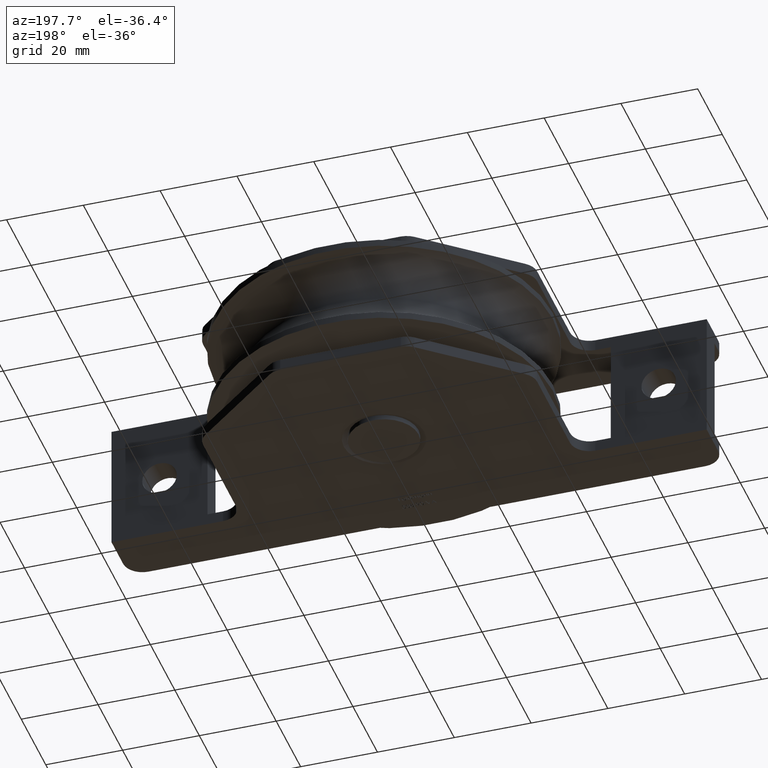
[diagram: clean part render]
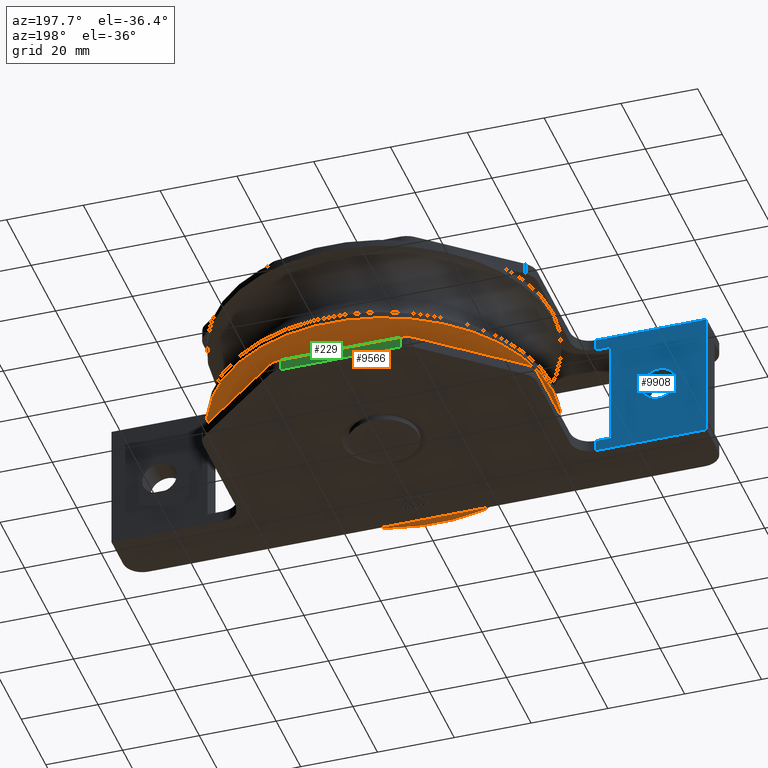
[diagram: same view with three faces highlighted in distinct colors, each labeled with its STEP entity id]
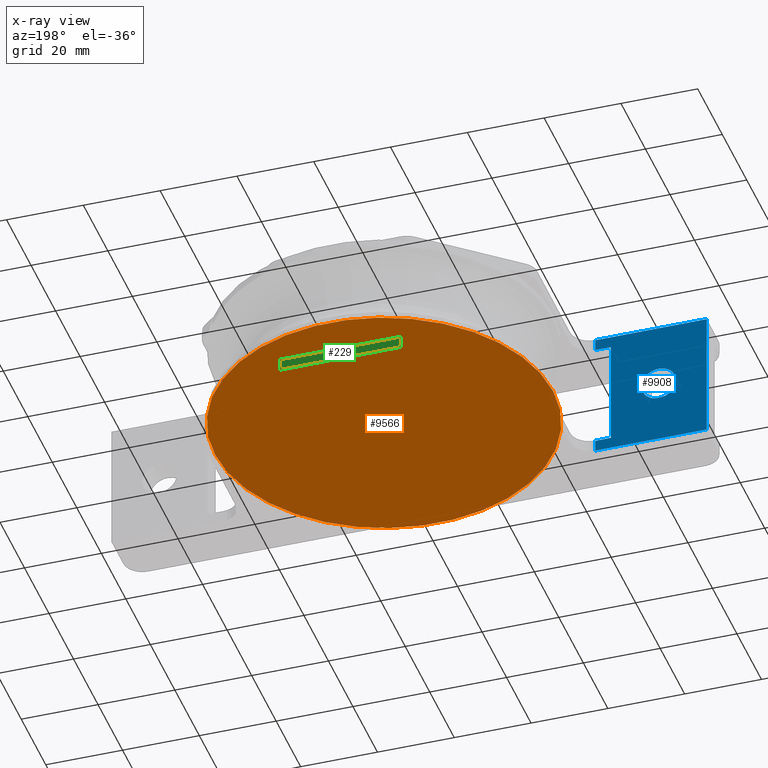
[diagram: x-ray of the same camera — body ghosted, the three highlighted faces saturated]
A machine part, auxiliary view with three faces highlighted in distinct colors.
The next image is the same camera in x-ray (body ghosted, the three faces saturated) — at least one of them is partly hidden behind the body in this view.
Their STEP definitions:

[orange] entity #9566 — the highlighted planar face has unit normal (0, 0, 1).
#1776 = DIRECTION ( 'NONE',  ( 1.000000000000000000, 0.0000000000000000000, -0.0000000000000000000 ) ) ;
#1826 = PLANE ( 'NONE',  #10534 ) ;
#2096 = CARTESIAN_POINT ( 'NONE',  ( 0.0000000000000000000, 0.0000000000000000000, -12.00000000000000000 ) ) ;
#3664 = FACE_OUTER_BOUND ( 'NONE', #9995, .T. ) ;
#3904 = ORIENTED_EDGE ( 'NONE', *, *, #11882, .F. ) ;
#4306 = DIRECTION ( 'NONE',  ( 1.000000000000000000, 0.0000000000000000000, 0.0000000000000000000 ) ) ;
#4448 = AXIS2_PLACEMENT_3D ( 'NONE', #2096, #14074, #4306 ) ;
#6651 = CIRCLE ( 'NONE', #4448, 44.00000000000000000 ) ;
#8445 = CARTESIAN_POINT ( 'NONE',  ( 0.0000000000000000000, 0.0000000000000000000, -12.00000000000000000 ) ) ;
#9566 = ADVANCED_FACE ( 'NONE', ( #3664 ), #1826, .F. ) ;
#9995 = EDGE_LOOP ( 'NONE', ( #3904 ) ) ;
#10246 = VERTEX_POINT ( 'NONE', #14340 ) ;
#10534 = AXIS2_PLACEMENT_3D ( 'NONE', #8445, #11937, #1776 ) ;
#11882 = EDGE_CURVE ( 'NONE', #10246, #10246, #6651, .T. ) ;
#11937 = DIRECTION ( 'NONE',  ( 0.0000000000000000000, 0.0000000000000000000, 1.000000000000000000 ) ) ;
#14074 = DIRECTION ( 'NONE',  ( 0.0000000000000000000, 0.0000000000000000000, 1.000000000000000000 ) ) ;
#14340 = CARTESIAN_POINT ( 'NONE',  ( 44.00000000000000000, 0.0000000000000000000, -12.00000000000000000 ) ) ;

[blue] entity #9908 — the highlighted planar face has unit normal (-0, -1, 0).
#4 = DIRECTION ( 'NONE',  ( -1.000000000000000000, 1.020425574104004200E-016, 0.0000000000000000000 ) ) ;
#382 = LINE ( 'NONE', #11800, #14119 ) ;
#400 = DIRECTION ( 'NONE',  ( 1.000000000000000000, -7.709882115452470300E-016, 0.0000000000000000000 ) ) ;
#723 = DIRECTION ( 'NONE',  ( 0.0000000000000000000, 0.0000000000000000000, -1.000000000000000000 ) ) ;
#924 = FACE_BOUND ( 'NONE', #11643, .T. ) ;
#1331 = AXIS2_PLACEMENT_3D ( 'NONE', #10293, #8256, #400 ) ;
#1722 = EDGE_CURVE ( 'NONE', #2051, #9396, #382, .T. ) ;
#1803 = ORIENTED_EDGE ( 'NONE', *, *, #1863, .T. ) ;
#1863 = EDGE_CURVE ( 'NONE', #6474, #11473, #12755, .T. ) ;
#2051 = VERTEX_POINT ( 'NONE', #13376 ) ;
#2134 = ORIENTED_EDGE ( 'NONE', *, *, #1722, .T. ) ;
#2182 = EDGE_CURVE ( 'NONE', #13011, #13759, #3006, .T. ) ;
#2274 = CARTESIAN_POINT ( 'NONE',  ( -48.50000000000000000, -20.50000000000000700, 14.00000000000000000 ) ) ;
#2292 = LINE ( 'NONE', #13015, #14245 ) ;
#2598 = VERTEX_POINT ( 'NONE', #11840 ) ;
#2661 = VECTOR ( 'NONE', #9394, 1000.000000000000000 ) ;
#2807 = DIRECTION ( 'NONE',  ( -0.0000000000000000000, -0.0000000000000000000, -1.000000000000000000 ) ) ;
#2866 = EDGE_CURVE ( 'NONE', #13369, #6474, #4570, .T. ) ;
#3006 = LINE ( 'NONE', #11685, #5237 ) ;
#3398 = VECTOR ( 'NONE', #9262, 1000.000000000000000 ) ;
#3764 = CARTESIAN_POINT ( 'NONE',  ( -77.50000000000000000, -20.50000000000000400, 17.00000000000000000 ) ) ;
#4281 = EDGE_CURVE ( 'NONE', #13759, #2051, #6352, .T. ) ;
#4335 = DIRECTION ( 'NONE',  ( 1.000000000000000000, -1.020425574104004200E-016, 0.0000000000000000000 ) ) ;
#4490 = VERTEX_POINT ( 'NONE', #7758 ) ;
#4570 = LINE ( 'NONE', #3764, #2661 ) ;
#4791 = EDGE_CURVE ( 'NONE', #13369, #2598, #12623, .T. ) ;
#5059 = CARTESIAN_POINT ( 'NONE',  ( -77.50000000000000000, -20.50000000000000400, 17.00000000000000000 ) ) ;
#5102 = ORIENTED_EDGE ( 'NONE', *, *, #2182, .T. ) ;
#5237 = VECTOR ( 'NONE', #6226, 1000.000000000000000 ) ;
#5557 = ORIENTED_EDGE ( 'NONE', *, *, #4281, .T. ) ;
#5631 = CARTESIAN_POINT ( 'NONE',  ( -77.50000000000000000, -20.50000000000000400, 14.00000000000000000 ) ) ;
#5730 = DIRECTION ( 'NONE',  ( 1.000000000000000000, -1.020425574104004200E-016, 0.0000000000000000000 ) ) ;
#6226 = DIRECTION ( 'NONE',  ( 0.0000000000000000000, 0.0000000000000000000, -1.000000000000000000 ) ) ;
#6261 = VECTOR ( 'NONE', #5730, 1000.000000000000000 ) ;
#6352 = LINE ( 'NONE', #10439, #3398 ) ;
#6474 = VERTEX_POINT ( 'NONE', #11254 ) ;
#6687 = CARTESIAN_POINT ( 'NONE',  ( -77.50000000000000000, -20.50000000000000400, 17.00000000000000000 ) ) ;
#6730 = EDGE_CURVE ( 'NONE', #4490, #4490, #8577, .T. ) ;
#6737 = PLANE ( 'NONE',  #11286 ) ;
#7024 = CARTESIAN_POINT ( 'NONE',  ( -48.50000000000000000, -20.50000000000000700, -17.00000000000000000 ) ) ;
#7415 = DIRECTION ( 'NONE',  ( 0.0000000000000000000, -0.0000000000000000000, -1.000000000000000000 ) ) ;
#7429 = CARTESIAN_POINT ( 'NONE',  ( -48.50000000000000000, -20.50000000000000700, 14.00000000000000000 ) ) ;
#7474 = CARTESIAN_POINT ( 'NONE',  ( -77.50000000000000000, -20.50000000000000400, 17.00000000000000000 ) ) ;
#7758 = CARTESIAN_POINT ( 'NONE',  ( -60.50000000000000000, -20.49999999999997500, 0.0000000000000000000 ) ) ;
#8161 = ORIENTED_EDGE ( 'NONE', *, *, #4791, .F. ) ;
#8215 = ORIENTED_EDGE ( 'NONE', *, *, #2866, .T. ) ;
#8256 = DIRECTION ( 'NONE',  ( -5.617657050926594400E-016, -1.000000000000000000, -0.0000000000000000000 ) ) ;
#8328 = EDGE_LOOP ( 'NONE', ( #8215, #1803, #12681, #5102, #5557, #2134, #11259, #8161 ) ) ;
#8521 = CARTESIAN_POINT ( 'NONE',  ( -52.50000000000000000, -20.50000000000000000, -13.99999999999998400 ) ) ;
#8577 = CIRCLE ( 'NONE', #1331, 4.500000000000003600 ) ;
#8653 = ORIENTED_EDGE ( 'NONE', *, *, #6730, .T. ) ;
#8947 = VECTOR ( 'NONE', #7415, 1000.000000000000000 ) ;
#9217 = LINE ( 'NONE', #5631, #6261 ) ;
#9254 = EDGE_CURVE ( 'NONE', #2598, #9396, #2292, .T. ) ;
#9262 = DIRECTION ( 'NONE',  ( 1.000000000000000000, -1.020425574104004200E-016, 0.0000000000000000000 ) ) ;
#9394 = DIRECTION ( 'NONE',  ( 1.000000000000000000, -1.020425574104004200E-016, 0.0000000000000000000 ) ) ;
#9396 = VERTEX_POINT ( 'NONE', #7024 ) ;
#9660 = EDGE_CURVE ( 'NONE', #13011, #11473, #9217, .T. ) ;
#9733 = CARTESIAN_POINT ( 'NONE',  ( -52.50000000000000000, -20.50000000000000000, 13.99999999999999800 ) ) ;
#9908 = ADVANCED_FACE ( 'NONE', ( #924, #14316 ), #6737, .F. ) ;
#10239 = DIRECTION ( 'NONE',  ( -1.020425574104004200E-016, -1.000000000000000000, 0.0000000000000000000 ) ) ;
#10293 = CARTESIAN_POINT ( 'NONE',  ( -65.00000000000000000, -20.49999999999997200, 0.0000000000000000000 ) ) ;
#10439 = CARTESIAN_POINT ( 'NONE',  ( -77.50000000000000000, -20.50000000000000400, -14.00000000000000000 ) ) ;
#11254 = CARTESIAN_POINT ( 'NONE',  ( -48.50000000000000000, -20.50000000000000700, 17.00000000000000000 ) ) ;
#11259 = ORIENTED_EDGE ( 'NONE', *, *, #9254, .F. ) ;
#11286 = AXIS2_PLACEMENT_3D ( 'NONE', #6687, #10239, #4 ) ;
#11473 = VERTEX_POINT ( 'NONE', #2274 ) ;
#11643 = EDGE_LOOP ( 'NONE', ( #8653 ) ) ;
#11685 = CARTESIAN_POINT ( 'NONE',  ( -52.50000000000000000, -20.50000000000000000, 39.83118270617898600 ) ) ;
#11800 = CARTESIAN_POINT ( 'NONE',  ( -48.50000000000000000, -20.50000000000000700, -17.00000000000000000 ) ) ;
#11840 = CARTESIAN_POINT ( 'NONE',  ( -77.50000000000000000, -20.50000000000000400, -17.00000000000000000 ) ) ;
#12623 = LINE ( 'NONE', #5059, #8947 ) ;
#12681 = ORIENTED_EDGE ( 'NONE', *, *, #9660, .F. ) ;
#12755 = LINE ( 'NONE', #7429, #12919 ) ;
#12919 = VECTOR ( 'NONE', #723, 1000.000000000000000 ) ;
#13011 = VERTEX_POINT ( 'NONE', #9733 ) ;
#13015 = CARTESIAN_POINT ( 'NONE',  ( -77.50000000000000000, -20.50000000000000400, -17.00000000000000000 ) ) ;
#13369 = VERTEX_POINT ( 'NONE', #7474 ) ;
#13376 = CARTESIAN_POINT ( 'NONE',  ( -48.50000000000000000, -20.50000000000000700, -14.00000000000000000 ) ) ;
#13759 = VERTEX_POINT ( 'NONE', #8521 ) ;
#14119 = VECTOR ( 'NONE', #2807, 1000.000000000000000 ) ;
#14245 = VECTOR ( 'NONE', #4335, 1000.000000000000000 ) ;
#14316 = FACE_OUTER_BOUND ( 'NONE', #8328, .T. ) ;

[green] entity #229 — the highlighted planar face has unit normal (0, -1, 0).
#229 = ADVANCED_FACE ( 'NONE', ( #10701 ), #11213, .F. ) ;
#372 = LINE ( 'NONE', #1718, #4560 ) ;
#592 = LINE ( 'NONE', #6430, #12105 ) ;
#1718 = CARTESIAN_POINT ( 'NONE',  ( 0.0000000000000000000, 35.49999999999999300, -14.00000000000000000 ) ) ;
#2023 = DIRECTION ( 'NONE',  ( -0.0000000000000000000, -0.0000000000000000000, -1.000000000000000000 ) ) ;
#3215 = ORIENTED_EDGE ( 'NONE', *, *, #10901, .T. ) ;
#3462 = CARTESIAN_POINT ( 'NONE',  ( 15.68014882866899900, 35.49999999999999300, -14.00000000000000000 ) ) ;
#3585 = CARTESIAN_POINT ( 'NONE',  ( -15.68014882866899900, 35.49999999999999300, -14.00000000000000000 ) ) ;
#3831 = ORIENTED_EDGE ( 'NONE', *, *, #4479, .T. ) ;
#4062 = CARTESIAN_POINT ( 'NONE',  ( 0.0000000000000000000, 35.49999999999999300, -17.00000000000000000 ) ) ;
#4479 = EDGE_CURVE ( 'NONE', #9093, #5278, #592, .T. ) ;
#4560 = VECTOR ( 'NONE', #6138, 1000.000000000000000 ) ;
#4594 = LINE ( 'NONE', #6505, #13118 ) ;
#4727 = CARTESIAN_POINT ( 'NONE',  ( -15.68014882866899900, 35.49999999999999300, -17.00000000000000000 ) ) ;
#5193 = EDGE_CURVE ( 'NONE', #5278, #8998, #6160, .T. ) ;
#5278 = VERTEX_POINT ( 'NONE', #9692 ) ;
#6138 = DIRECTION ( 'NONE',  ( -1.000000000000000000, -0.0000000000000000000, 0.0000000000000000000 ) ) ;
#6160 = LINE ( 'NONE', #4062, #9626 ) ;
#6430 = CARTESIAN_POINT ( 'NONE',  ( 15.68014882866899900, 35.49999999999999300, -17.00000000000000000 ) ) ;
#6505 = CARTESIAN_POINT ( 'NONE',  ( -15.68014882866899900, 35.49999999999999300, -17.00000000000000000 ) ) ;
#6652 = VERTEX_POINT ( 'NONE', #3585 ) ;
#7421 = ORIENTED_EDGE ( 'NONE', *, *, #11541, .F. ) ;
#7439 = DIRECTION ( 'NONE',  ( -1.000000000000000000, -0.0000000000000000000, 0.0000000000000000000 ) ) ;
#7795 = DIRECTION ( 'NONE',  ( 0.0000000000000000000, 0.0000000000000000000, 1.000000000000000000 ) ) ;
#8612 = DIRECTION ( 'NONE',  ( 0.0000000000000000000, 0.0000000000000000000, 1.000000000000000000 ) ) ;
#8952 = DIRECTION ( 'NONE',  ( 0.0000000000000000000, -1.000000000000000000, 0.0000000000000000000 ) ) ;
#8998 = VERTEX_POINT ( 'NONE', #4727 ) ;
#9093 = VERTEX_POINT ( 'NONE', #3462 ) ;
#9626 = VECTOR ( 'NONE', #7439, 1000.000000000000000 ) ;
#9692 = CARTESIAN_POINT ( 'NONE',  ( 15.68014882866899900, 35.49999999999999300, -17.00000000000000000 ) ) ;
#10701 = FACE_OUTER_BOUND ( 'NONE', #13128, .T. ) ;
#10901 = EDGE_CURVE ( 'NONE', #8998, #6652, #4594, .T. ) ;
#11071 = CARTESIAN_POINT ( 'NONE',  ( 0.0000000000000000000, 35.49999999999999300, -17.00000000000000000 ) ) ;
#11213 = PLANE ( 'NONE',  #12407 ) ;
#11541 = EDGE_CURVE ( 'NONE', #9093, #6652, #372, .T. ) ;
#12105 = VECTOR ( 'NONE', #2023, 1000.000000000000000 ) ;
#12407 = AXIS2_PLACEMENT_3D ( 'NONE', #11071, #8952, #7795 ) ;
#13118 = VECTOR ( 'NONE', #8612, 1000.000000000000000 ) ;
#13128 = EDGE_LOOP ( 'NONE', ( #14391, #3215, #7421, #3831 ) ) ;
#14391 = ORIENTED_EDGE ( 'NONE', *, *, #5193, .T. ) ;